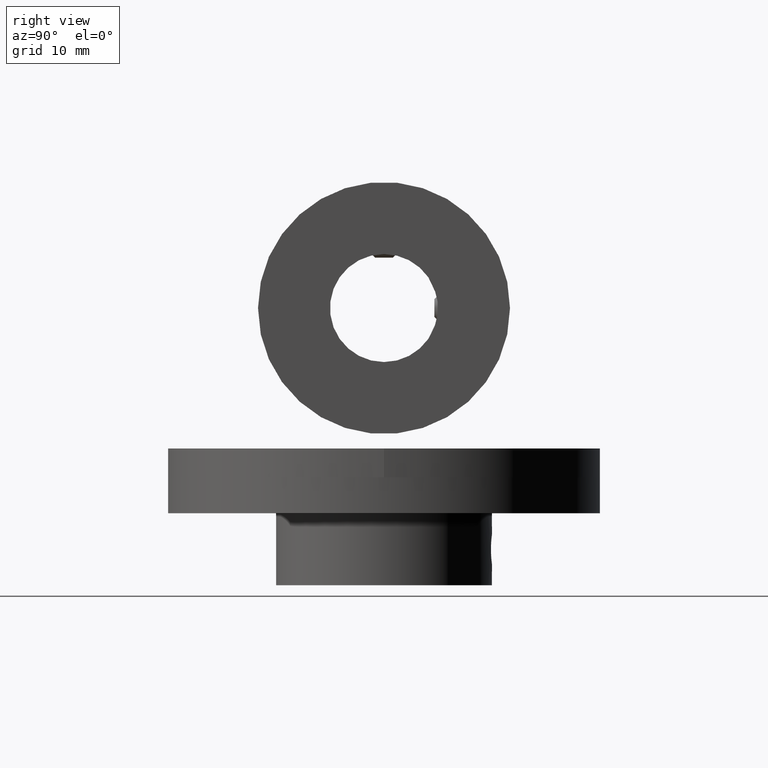
[diagram: clean part render]
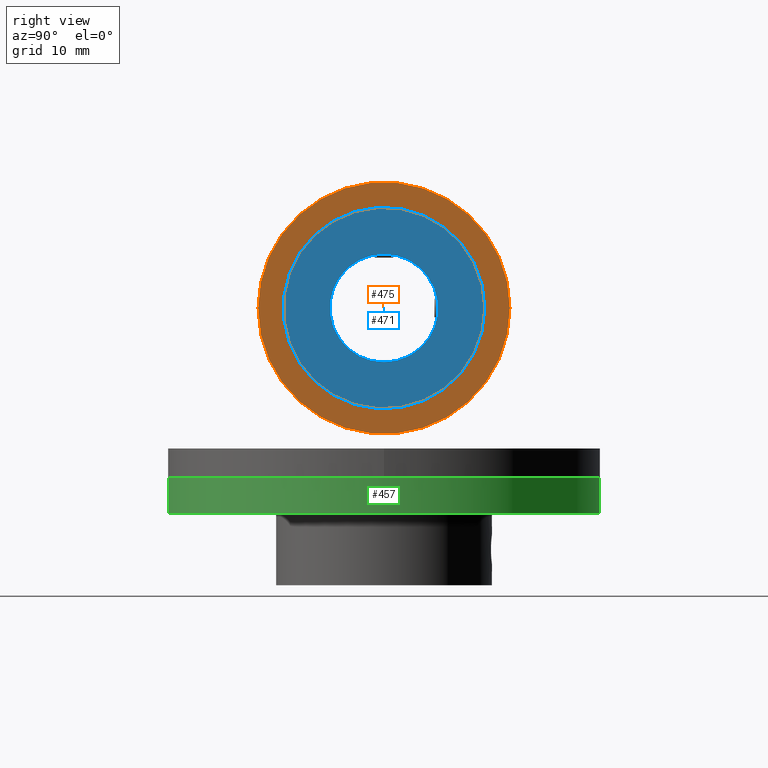
[diagram: same view with three faces highlighted in distinct colors, each labeled with its STEP entity id]
A machine part, right view with three faces highlighted in distinct colors.
Their STEP definitions:

[orange] entity #475 — the highlighted planar face has unit normal (1, 0, 0).
#475 = ADVANCED_FACE( '', ( #608, #609 ), #610, .T. );
#608 = FACE_OUTER_BOUND( '', #792, .T. );
#609 = FACE_BOUND( '', #793, .T. );
#610 = PLANE( '', #794 );
#792 = EDGE_LOOP( '', ( #1020 ) );
#793 = EDGE_LOOP( '', ( #1021 ) );
#794 = AXIS2_PLACEMENT_3D( '', #1022, #1023, #1024 );
#1020 = ORIENTED_EDGE( '', *, *, #1359, .T. );
#1021 = ORIENTED_EDGE( '', *, *, #1361, .F. );
#1022 = CARTESIAN_POINT( '', ( 30.0000000000000, 0.000000000000000, 46.0000000000000 ) );
#1023 = DIRECTION( '', ( 1.00000000000000, 0.000000000000000, 0.000000000000000 ) );
#1024 = DIRECTION( '', ( 0.000000000000000, 1.00000000000000, 0.000000000000000 ) );
#1359 = EDGE_CURVE( '', #1500, #1500, #1501, .T. );
#1361 = EDGE_CURVE( '', #1504, #1504, #1505, .T. );
#1500 = VERTEX_POINT( '', #2148 );
#1501 = CIRCLE( '', #2149, 17.5000000000000 );
#1504 = VERTEX_POINT( '', #2152 );
#1505 = CIRCLE( '', #2153, 14.0000000000000 );
#2148 = CARTESIAN_POINT( '', ( 30.0000000000000, 17.5000000000000, 46.0000000000000 ) );
#2149 = AXIS2_PLACEMENT_3D( '', #2517, #2518, #2519 );
#2152 = CARTESIAN_POINT( '', ( 30.0000000000000, 14.0000000000000, 46.0000000000000 ) );
#2153 = AXIS2_PLACEMENT_3D( '', #2523, #2524, #2525 );
#2517 = CARTESIAN_POINT( '', ( 30.0000000000000, 0.000000000000000, 46.0000000000000 ) );
#2518 = DIRECTION( '', ( 1.00000000000000, 0.000000000000000, 0.000000000000000 ) );
#2519 = DIRECTION( '', ( 0.000000000000000, 1.00000000000000, 0.000000000000000 ) );
#2523 = CARTESIAN_POINT( '', ( 30.0000000000000, 0.000000000000000, 46.0000000000000 ) );
#2524 = DIRECTION( '', ( 1.00000000000000, 0.000000000000000, 0.000000000000000 ) );
#2525 = DIRECTION( '', ( 0.000000000000000, 1.00000000000000, 0.000000000000000 ) );

[blue] entity #471 — the highlighted planar face has unit normal (1, 0, 0).
#471 = ADVANCED_FACE( '', ( #596, #597 ), #598, .T. );
#596 = FACE_BOUND( '', #780, .T. );
#597 = FACE_OUTER_BOUND( '', #781, .T. );
#598 = PLANE( '', #782 );
#780 = EDGE_LOOP( '', ( #1000 ) );
#781 = EDGE_LOOP( '', ( #1001 ) );
#782 = AXIS2_PLACEMENT_3D( '', #1002, #1003, #1004 );
#1000 = ORIENTED_EDGE( '', *, *, #1354, .F. );
#1001 = ORIENTED_EDGE( '', *, *, #1357, .T. );
#1002 = CARTESIAN_POINT( '', ( 30.0000000000000, 0.000000000000000, 46.0000000000000 ) );
#1003 = DIRECTION( '', ( 1.00000000000000, 0.000000000000000, 0.000000000000000 ) );
#1004 = DIRECTION( '', ( 0.000000000000000, -1.83690953073357E-016, -1.00000000000000 ) );
#1354 = EDGE_CURVE( '', #1490, #1490, #1491, .T. );
#1357 = EDGE_CURVE( '', #1496, #1496, #1497, .T. );
#1490 = VERTEX_POINT( '', #2081 );
#1491 = CIRCLE( '', #2082, 7.50000000000000 );
#1496 = VERTEX_POINT( '', #2144 );
#1497 = CIRCLE( '', #2145, 14.0000000000000 );
#2081 = CARTESIAN_POINT( '', ( 30.0000000000000, -1.37768214805017E-015, 38.5000000000000 ) );
#2082 = AXIS2_PLACEMENT_3D( '', #2505, #2506, #2507 );
#2144 = CARTESIAN_POINT( '', ( 30.0000000000000, 14.0000000000000, 46.0000000000000 ) );
#2145 = AXIS2_PLACEMENT_3D( '', #2511, #2512, #2513 );
#2505 = CARTESIAN_POINT( '', ( 30.0000000000000, 0.000000000000000, 46.0000000000000 ) );
#2506 = DIRECTION( '', ( 1.00000000000000, 0.000000000000000, 0.000000000000000 ) );
#2507 = DIRECTION( '', ( 0.000000000000000, -1.83690953073357E-016, -1.00000000000000 ) );
#2511 = CARTESIAN_POINT( '', ( 30.0000000000000, 0.000000000000000, 46.0000000000000 ) );
#2512 = DIRECTION( '', ( 1.00000000000000, 0.000000000000000, 0.000000000000000 ) );
#2513 = DIRECTION( '', ( 0.000000000000000, 1.00000000000000, 0.000000000000000 ) );

[green] entity #457 — the highlighted cylindrical surface (bore or boss wall) has radius 30 mm, axis along (-0, -0, -1).
#457 = ADVANCED_FACE( '', ( #546, #547 ), #548, .T. );
#546 = FACE_OUTER_BOUND( '', #730, .T. );
#547 = FACE_OUTER_BOUND( '', #731, .T. );
#548 = CYLINDRICAL_SURFACE( '', #732, 30.0000000000000 );
#730 = EDGE_LOOP( '', ( #922 ) );
#731 = EDGE_LOOP( '', ( #923 ) );
#732 = AXIS2_PLACEMENT_3D( '', #924, #925, #926 );
#922 = ORIENTED_EDGE( '', *, *, #1338, .T. );
#923 = ORIENTED_EDGE( '', *, *, #1339, .F. );
#924 = CARTESIAN_POINT( '', ( 0.000000000000000, 0.000000000000000, 7.50000000000000 ) );
#925 = DIRECTION( '', ( -0.000000000000000, -0.000000000000000, -1.00000000000000 ) );
#926 = DIRECTION( '', ( -1.00000000000000, 1.22460635382238E-016, 0.000000000000000 ) );
#1338 = EDGE_CURVE( '', #1458, #1458, #1459, .T. );
#1339 = EDGE_CURVE( '', #1460, #1460, #1461, .T. );
#1458 = VERTEX_POINT( '', #1658 );
#1459 = CIRCLE( '', #1659, 30.0000000000000 );
#1460 = VERTEX_POINT( '', #1660 );
#1461 = CIRCLE( '', #1661, 30.0000000000000 );
#1658 = CARTESIAN_POINT( '', ( -30.0000000000000, 3.67381906146713E-015, 17.5000000000000 ) );
#1659 = AXIS2_PLACEMENT_3D( '', #2478, #2479, #2480 );
#1660 = CARTESIAN_POINT( '', ( -30.0000000000000, 3.67381906146713E-015, 22.5000000000000 ) );
#1661 = AXIS2_PLACEMENT_3D( '', #2481, #2482, #2483 );
#2478 = CARTESIAN_POINT( '', ( 0.000000000000000, 0.000000000000000, 17.5000000000000 ) );
#2479 = DIRECTION( '', ( 0.000000000000000, 0.000000000000000, 1.00000000000000 ) );
#2480 = DIRECTION( '', ( -1.00000000000000, 1.22460635382238E-016, 0.000000000000000 ) );
#2481 = CARTESIAN_POINT( '', ( 0.000000000000000, 0.000000000000000, 22.5000000000000 ) );
#2482 = DIRECTION( '', ( 0.000000000000000, 0.000000000000000, 1.00000000000000 ) );
#2483 = DIRECTION( '', ( -1.00000000000000, 1.22460635382238E-016, 0.000000000000000 ) );